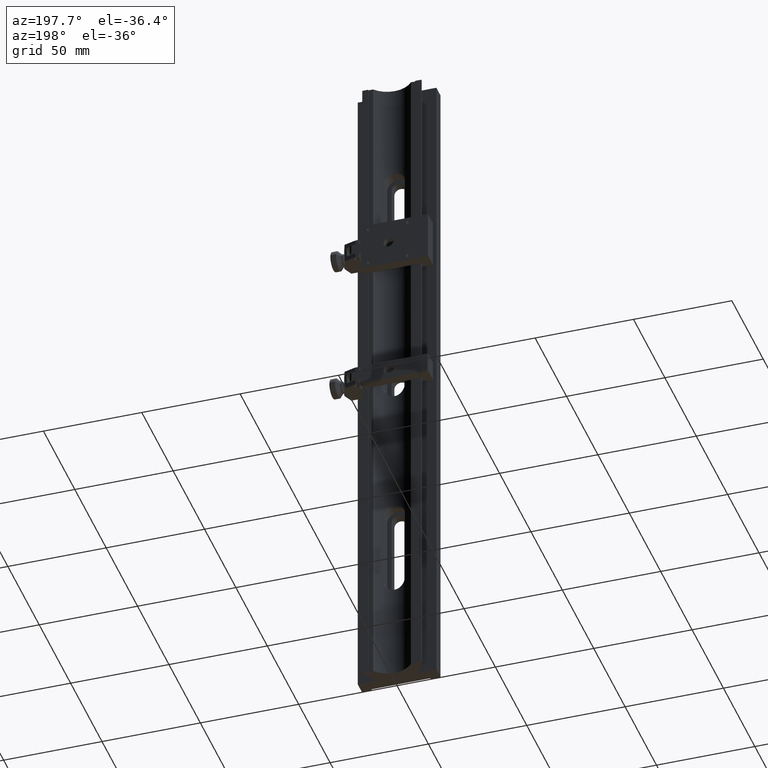
[diagram: clean part render]
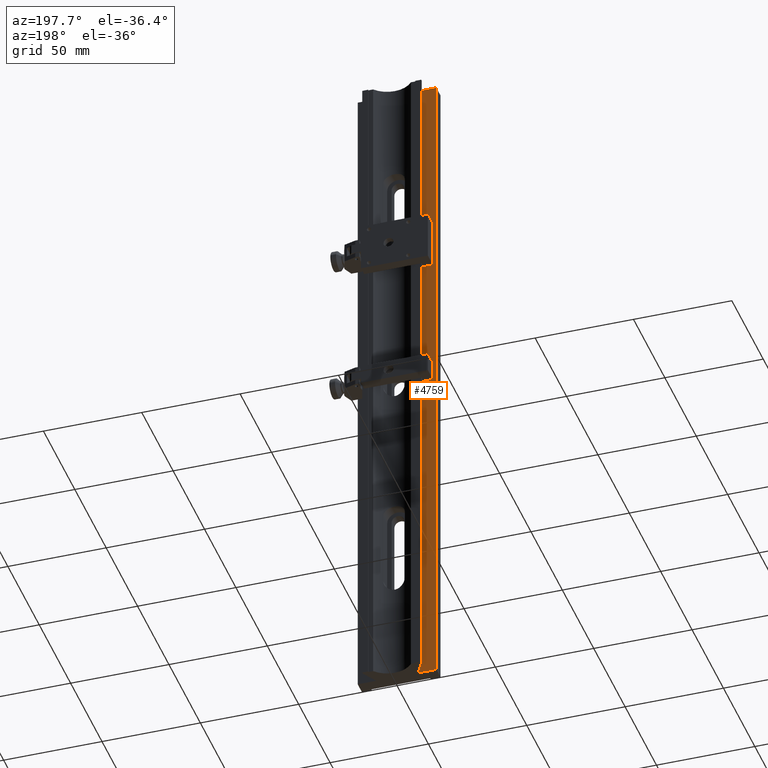
[diagram: same view with one face highlighted and labeled with its STEP entity id]
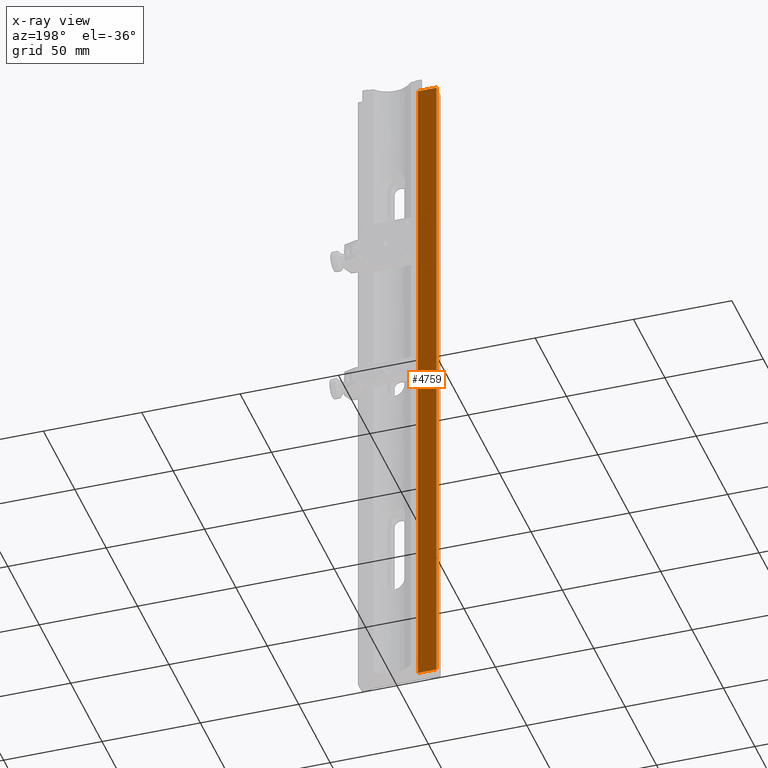
[diagram: x-ray of the same camera — body ghosted, the highlighted face saturated]
A machine part, auxiliary view. The second image highlights one B-rep face of the part: STEP entity #4759.
The next image is the same camera in x-ray: the body ghosted, the highlighted face saturated — about 0% of this face is hidden behind the body in this view.
In plain terms, the highlighted planar face has unit normal (0, -1, 0).
Its self-contained STEP definition (entity closure, byte-faithful):
#278 = DIRECTION ( 'NONE',  ( 1.000000000000000000, 0.000000000000000000, 0.000000000000000000 ) ) ;
#809 = LINE ( 'NONE', #6085, #3829 ) ;
#879 = CARTESIAN_POINT ( 'NONE',  ( -20.00000000000000000, -0.000000000000000000, -175.0000000000000000 ) ) ;
#887 = EDGE_CURVE ( 'NONE', #1571, #1886, #809, .T. ) ;
#1121 = LINE ( 'NONE', #2744, #5871 ) ;
#1365 = CARTESIAN_POINT ( 'NONE',  ( -10.59252271188812422, 0.000000000000000000, 175.0000000000000000 ) ) ;
#1571 = VERTEX_POINT ( 'NONE', #1365 ) ;
#1886 = VERTEX_POINT ( 'NONE', #6308 ) ;
#1962 = EDGE_CURVE ( 'NONE', #1571, #2085, #4936, .T. ) ;
#2085 = VERTEX_POINT ( 'NONE', #5036 ) ;
#2158 = DIRECTION ( 'NONE',  ( -1.000000000000000000, 0.000000000000000000, -0.000000000000000000 ) ) ;
#2269 = DIRECTION ( 'NONE',  ( -0.000000000000000000, 0.000000000000000000, -1.000000000000000000 ) ) ;
#2464 = AXIS2_PLACEMENT_3D ( 'NONE', #4659, #5791, #278 ) ;
#2744 = CARTESIAN_POINT ( 'NONE',  ( -20.00000000000000000, 0.000000000000000000, 175.0000000000000000 ) ) ;
#3051 = DIRECTION ( 'NONE',  ( -1.000000000000000000, 0.000000000000000000, -0.000000000000000000 ) ) ;
#3208 = CARTESIAN_POINT ( 'NONE',  ( -20.00000000000000000, -0.000000000000000000, -175.0000000000000000 ) ) ;
#3229 = VECTOR ( 'NONE', #2158, 1000.000000000000000 ) ;
#3238 = EDGE_CURVE ( 'NONE', #1886, #5309, #4109, .T. ) ;
#3756 = CARTESIAN_POINT ( 'NONE',  ( -20.00000000000000000, 0.000000000000000000, 175.0000000000000000 ) ) ;
#3829 = VECTOR ( 'NONE', #2269, 1000.000000000000000 ) ;
#3853 = ORIENTED_EDGE ( 'NONE', *, *, #887, .T. ) ;
#4002 = PLANE ( 'NONE',  #2464 ) ;
#4109 = LINE ( 'NONE', #879, #6210 ) ;
#4113 = FACE_OUTER_BOUND ( 'NONE', #4362, .T. ) ;
#4226 = ORIENTED_EDGE ( 'NONE', *, *, #1962, .F. ) ;
#4362 = EDGE_LOOP ( 'NONE', ( #6350, #4580, #4226, #3853 ) ) ;
#4580 = ORIENTED_EDGE ( 'NONE', *, *, #5497, .F. ) ;
#4659 = CARTESIAN_POINT ( 'NONE',  ( -20.00000000000000000, 0.000000000000000000, 175.0000000000000000 ) ) ;
#4759 = ADVANCED_FACE ( 'NONE', ( #4113 ), #4002, .F. ) ;
#4923 = DIRECTION ( 'NONE',  ( -0.000000000000000000, 0.000000000000000000, -1.000000000000000000 ) ) ;
#4936 = LINE ( 'NONE', #3756, #3229 ) ;
#5036 = CARTESIAN_POINT ( 'NONE',  ( -20.00000000000000000, 0.000000000000000000, 175.0000000000000000 ) ) ;
#5309 = VERTEX_POINT ( 'NONE', #3208 ) ;
#5497 = EDGE_CURVE ( 'NONE', #2085, #5309, #1121, .T. ) ;
#5791 = DIRECTION ( 'NONE',  ( 0.000000000000000000, -1.000000000000000000, 0.000000000000000000 ) ) ;
#5871 = VECTOR ( 'NONE', #4923, 1000.000000000000000 ) ;
#6085 = CARTESIAN_POINT ( 'NONE',  ( -10.59252271188812422, 0.000000000000000000, 175.0000000000000000 ) ) ;
#6210 = VECTOR ( 'NONE', #3051, 1000.000000000000000 ) ;
#6308 = CARTESIAN_POINT ( 'NONE',  ( -10.59252271188812422, -0.000000000000000000, -175.0000000000000000 ) ) ;
#6350 = ORIENTED_EDGE ( 'NONE', *, *, #3238, .T. ) ;